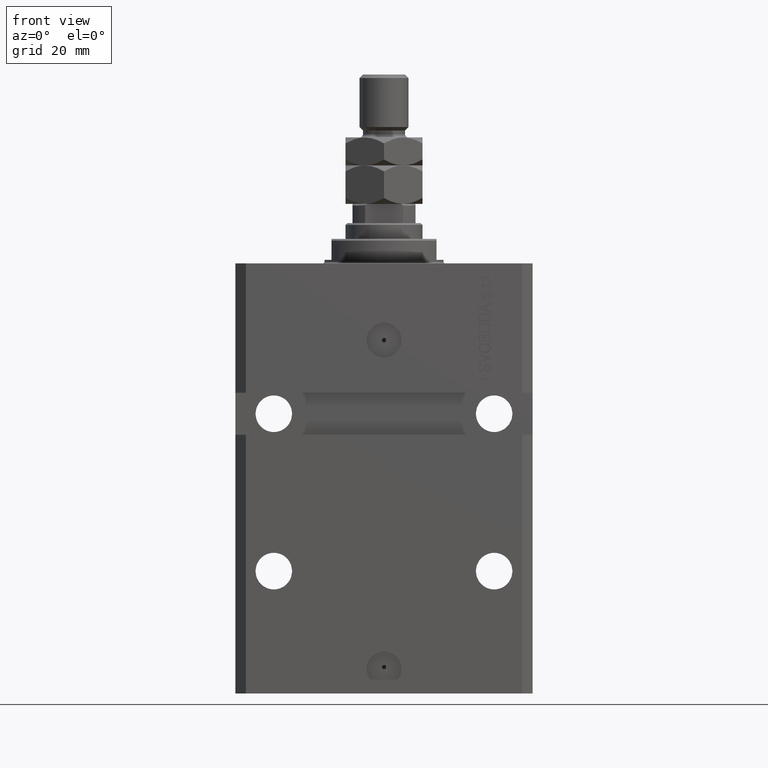
[diagram: clean part render]
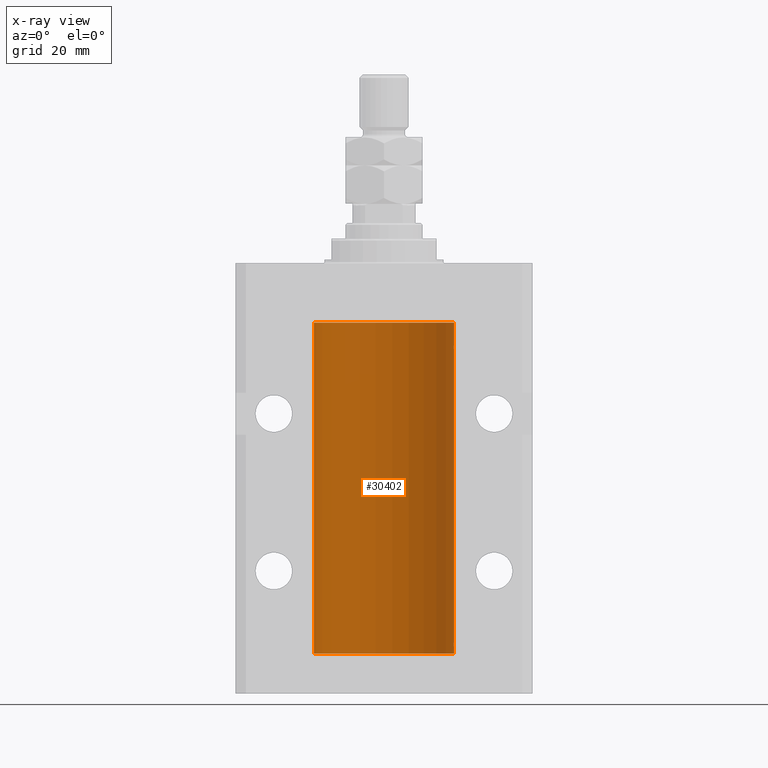
[diagram: x-ray — body ghosted, one internal face saturated and labeled with its STEP entity id]
A machine part, front view, then the same camera in x-ray: the body is ghosted and one INTERNAL B-rep face — a face not visible from any outside direction — is saturated and labeled: STEP entity #30402.
In plain terms, the highlighted cylindrical surface (partial cylindrical patch) has radius 20 mm, axis along (0, 0, 1).
Its self-contained STEP definition (entity closure, byte-faithful):
#1185 = CARTESIAN_POINT ( 'NONE',  ( 19.99999999999999645, 0.08261455565447944904, -24.62499999999999289 ) ) ;
#1657 = DIRECTION ( 'NONE',  ( 1.000000000000000000, 0.000000000000000000, 0.000000000000000000 ) ) ;
#1880 = VERTEX_POINT ( 'NONE', #23929 ) ;
#2197 = B_SPLINE_CURVE_WITH_KNOTS ( 'NONE', 3,
 ( #16787, #1185, #16542, #31839, #47199, #12748, #28085, #24324 ),
 .UNSPECIFIED., .F., .F.,
 ( 4, 2, 2, 4 ),
 ( 3.558729249985022577E-18, 0.0002443247335684094949, 0.0004886494671368154120, 0.0009772989342736271377 ),
 .UNSPECIFIED. ) ;
#2210 = CIRCLE ( 'NONE', #31913, 20.00000000000000000 ) ;
#2554 = CARTESIAN_POINT ( 'NONE',  ( 20.00000000000000000, 2.480610556832390753E-15, -24.62500000000000000 ) ) ;
#3449 = LINE ( 'NONE', #14768, #49106 ) ;
#3940 = CARTESIAN_POINT ( 'NONE',  ( 19.99023198964909298, 0.6250000000081508134, -23.99999999999910472 ) ) ;
#5371 = ORIENTED_EDGE ( 'NONE', *, *, #18889, .T. ) ;
#7219 = VECTOR ( 'NONE', #9198, 1000.000000000000000 ) ;
#9198 = DIRECTION ( 'NONE',  ( -0.000000000000000000, -0.000000000000000000, 1.000000000000000000 ) ) ;
#9741 = CARTESIAN_POINT ( 'NONE',  ( -20.00000000000000000, 2.449293598294706513E-15, -111.5999999999999943 ) ) ;
#9915 = DIRECTION ( 'NONE',  ( 1.000000000000000000, 0.000000000000000000, 0.000000000000000000 ) ) ;
#10673 = CARTESIAN_POINT ( 'NONE',  ( 19.99999999999999645, 0.08261455565447825555, -109.6249999999999574 ) ) ;
#10922 = CARTESIAN_POINT ( 'NONE',  ( 20.00000000000000000, 0.000000000000000000, -111.5999999999999943 ) ) ;
#11709 = VECTOR ( 'NONE', #26607, 1000.000000000000000 ) ;
#11838 = DIRECTION ( 'NONE',  ( 1.000000000000000000, 0.000000000000000000, 0.000000000000000000 ) ) ;
#12441 = VERTEX_POINT ( 'NONE', #14744 ) ;
#12748 = CARTESIAN_POINT ( 'NONE',  ( 19.99256353007439202, 0.5574106582031160828, -24.32639035180114817 ) ) ;
#13921 = CYLINDRICAL_SURFACE ( 'NONE', #35064, 20.00000000000000000 ) ;
#14020 = CARTESIAN_POINT ( 'NONE',  ( 19.99023198964936299, 0.6249999999995806688, -108.8369638477980885 ) ) ;
#14744 = CARTESIAN_POINT ( 'NONE',  ( 20.00000000000010303, 3.555666340528858977E-13, -23.37499999999667111 ) ) ;
#14768 = CARTESIAN_POINT ( 'NONE',  ( 20.00000000000000000, 0.000000000000000000, -111.5999999999999943 ) ) ;
#15623 = CARTESIAN_POINT ( 'NONE',  ( 0.000000000000000000, 0.000000000000000000, -111.5999999999999943 ) ) ;
#16081 = ORIENTED_EDGE ( 'NONE', *, *, #35418, .F. ) ;
#16419 = CARTESIAN_POINT ( 'NONE',  ( 20.00000000000000000, 0.000000000000000000, -17.00000000000000000 ) ) ;
#16542 = CARTESIAN_POINT ( 'NONE',  ( 19.99947351343144675, 0.1636818329565332686, -24.60872855715644292 ) ) ;
#16611 = CARTESIAN_POINT ( 'NONE',  ( 20.00000000000010303, 3.555666352936568165E-13, -108.3749999999966747 ) ) ;
#16787 = CARTESIAN_POINT ( 'NONE',  ( 20.00000000000000000, 2.480610556832390753E-15, -24.62500000000000000 ) ) ;
#17372 = B_SPLINE_CURVE_WITH_KNOTS ( 'NONE', 3,
 ( #40944, #14020, #17823, #29357, #33119, #28596 ),
 .UNSPECIFIED., .F., .F.,
 ( 4, 2, 4 ),
 ( 0.0009772989342736221503, 0.001465726722058849005, 0.001954154509844075859 ),
 .UNSPECIFIED. ) ;
#17823 = CARTESIAN_POINT ( 'NONE',  ( 19.99253733128256627, 0.5586305947779004466, -108.6747603673526044 ) ) ;
#18225 = LINE ( 'NONE', #10922, #19242 ) ;
#18833 = LINE ( 'NONE', #45726, #11709 ) ;
#18889 = EDGE_CURVE ( 'NONE', #27993, #1880, #18225, .T. ) ;
#19242 = VECTOR ( 'NONE', #33276, 1000.000000000000000 ) ;
#19530 = CARTESIAN_POINT ( 'NONE',  ( 19.99023198964935588, 0.6249999999995746736, -23.83696384779806721 ) ) ;
#20959 = EDGE_CURVE ( 'NONE', #42100, #41001, #3449, .T. ) ;
#22690 = DIRECTION ( 'NONE',  ( 0.000000000000000000, 0.000000000000000000, 1.000000000000000000 ) ) ;
#23114 = ORIENTED_EDGE ( 'NONE', *, *, #47659, .T. ) ;
#23318 = CARTESIAN_POINT ( 'NONE',  ( 19.99253733128256272, 0.5586305947778931191, -23.67476036735258305 ) ) ;
#23705 = ORIENTED_EDGE ( 'NONE', *, *, #29337, .T. ) ;
#23726 = VERTEX_POINT ( 'NONE', #16419 ) ;
#23814 = AXIS2_PLACEMENT_3D ( 'NONE', #33320, #32818, #1657 ) ;
#23929 = CARTESIAN_POINT ( 'NONE',  ( 20.00000000000000000, -4.058908006348821872E-15, -109.6250000000000000 ) ) ;
#24324 = CARTESIAN_POINT ( 'NONE',  ( 19.99023198964909298, 0.6250000000081508134, -23.99999999999910472 ) ) ;
#24421 = EDGE_CURVE ( 'NONE', #1880, #28785, #40312, .T. ) ;
#26607 = DIRECTION ( 'NONE',  ( -0.000000000000000000, -0.000000000000000000, 1.000000000000000000 ) ) ;
#26747 = CARTESIAN_POINT ( 'NONE',  ( 19.99023198964934167, 0.6250000000002757794, -109.1631101482932706 ) ) ;
#27993 = VERTEX_POINT ( 'NONE', #41204 ) ;
#28085 = CARTESIAN_POINT ( 'NONE',  ( 19.99023198964933812, 0.6250000000002681189, -24.16311014829328130 ) ) ;
#28176 = EDGE_CURVE ( 'NONE', #42694, #33695, #18833, .T. ) ;
#28290 = B_SPLINE_CURVE_WITH_KNOTS ( 'NONE', 3,
 ( #3940, #19530, #23318, #46424, #42177, #35102 ),
 .UNSPECIFIED., .F., .F.,
 ( 4, 2, 4 ),
 ( 0.0009772989342736271377, 0.001465726722058853775, 0.001954154509844080196 ),
 .UNSPECIFIED. ) ;
#28596 = CARTESIAN_POINT ( 'NONE',  ( 20.00000000000010303, 3.555666352936568165E-13, -108.3749999999966747 ) ) ;
#28785 = VERTEX_POINT ( 'NONE', #49365 ) ;
#29177 = ORIENTED_EDGE ( 'NONE', *, *, #41484, .T. ) ;
#29258 = DIRECTION ( 'NONE',  ( -0.000000000000000000, -0.000000000000000000, 1.000000000000000000 ) ) ;
#29337 = EDGE_CURVE ( 'NONE', #23726, #33695, #45495, .T. ) ;
#29357 = CARTESIAN_POINT ( 'NONE',  ( 19.99769474220011034, 0.3253030616682413001, -108.4414063389763072 ) ) ;
#30402 = ADVANCED_FACE ( 'NONE', ( #41095 ), #13921, .F. ) ;
#31064 = CARTESIAN_POINT ( 'NONE',  ( 19.99023198964909298, 0.6250000000081508134, -23.99999999999910472 ) ) ;
#31839 = CARTESIAN_POINT ( 'NONE',  ( 19.99766100389832957, 0.3150982863324739425, -24.54594438241279164 ) ) ;
#31913 = AXIS2_PLACEMENT_3D ( 'NONE', #15623, #22690, #11838 ) ;
#32818 = DIRECTION ( 'NONE',  ( 0.000000000000000000, 0.000000000000000000, 1.000000000000000000 ) ) ;
#33119 = CARTESIAN_POINT ( 'NONE',  ( 19.99999999999999645, 0.1631318418333158327, -108.3750000000001705 ) ) ;
#33276 = DIRECTION ( 'NONE',  ( -0.000000000000000000, -0.000000000000000000, 1.000000000000000000 ) ) ;
#33320 = CARTESIAN_POINT ( 'NONE',  ( 0.000000000000000000, 0.000000000000000000, -17.00000000000000000 ) ) ;
#33533 = CARTESIAN_POINT ( 'NONE',  ( 19.99256353007439202, 0.5574106582031174151, -109.3263903518011517 ) ) ;
#33695 = VERTEX_POINT ( 'NONE', #34605 ) ;
#33716 = EDGE_CURVE ( 'NONE', #41822, #12441, #28290, .T. ) ;
#33786 = CARTESIAN_POINT ( 'NONE',  ( 19.99023198964909298, 0.6250000000081574747, -108.9999999999991047 ) ) ;
#34032 = CARTESIAN_POINT ( 'NONE',  ( 19.99766100389833312, 0.3150982863324784944, -109.5459443824127987 ) ) ;
#34281 = CARTESIAN_POINT ( 'NONE',  ( 19.99947351343144319, 0.1636818329565372654, -109.6087285571564536 ) ) ;
#34605 = CARTESIAN_POINT ( 'NONE',  ( -20.00000000000000000, 2.449293598294706513E-15, -17.00000000000000000 ) ) ;
#34638 = ORIENTED_EDGE ( 'NONE', *, *, #20959, .T. ) ;
#34817 = EDGE_LOOP ( 'NONE', ( #40004, #16081, #5371, #40619, #23114, #34638, #29177, #46584, #41661, #23705 ) ) ;
#35064 = AXIS2_PLACEMENT_3D ( 'NONE', #43848, #29258, #9915 ) ;
#35102 = CARTESIAN_POINT ( 'NONE',  ( 20.00000000000010303, 3.555666340528858977E-13, -23.37499999999667111 ) ) ;
#35418 = EDGE_CURVE ( 'NONE', #27993, #42694, #2210, .T. ) ;
#38151 = DIRECTION ( 'NONE',  ( -0.000000000000000000, -0.000000000000000000, 1.000000000000000000 ) ) ;
#40004 = ORIENTED_EDGE ( 'NONE', *, *, #28176, .F. ) ;
#40312 = B_SPLINE_CURVE_WITH_KNOTS ( 'NONE', 3,
 ( #45872, #10673, #34281, #34032, #49639, #33533, #26747, #33786 ),
 .UNSPECIFIED., .F., .F.,
 ( 4, 2, 2, 4 ),
 ( 3.944467879762244826E-18, 0.0002443247335684012008, 0.0004886494671367983900, 0.0009772989342736221503 ),
 .UNSPECIFIED. ) ;
#40619 = ORIENTED_EDGE ( 'NONE', *, *, #24421, .T. ) ;
#40944 = CARTESIAN_POINT ( 'NONE',  ( 19.99023198964909298, 0.6250000000081574747, -108.9999999999991047 ) ) ;
#41001 = VERTEX_POINT ( 'NONE', #2554 ) ;
#41095 = FACE_OUTER_BOUND ( 'NONE', #34817, .T. ) ;
#41204 = CARTESIAN_POINT ( 'NONE',  ( 20.00000000000000000, 0.000000000000000000, -111.5999999999999943 ) ) ;
#41484 = EDGE_CURVE ( 'NONE', #41001, #41822, #2197, .T. ) ;
#41661 = ORIENTED_EDGE ( 'NONE', *, *, #48747, .T. ) ;
#41822 = VERTEX_POINT ( 'NONE', #31064 ) ;
#42100 = VERTEX_POINT ( 'NONE', #16611 ) ;
#42177 = CARTESIAN_POINT ( 'NONE',  ( 19.99999999999999645, 0.1631318418333146114, -23.37500000000016698 ) ) ;
#42694 = VERTEX_POINT ( 'NONE', #9741 ) ;
#43161 = CARTESIAN_POINT ( 'NONE',  ( 20.00000000000000000, 0.000000000000000000, -111.5999999999999943 ) ) ;
#43848 = CARTESIAN_POINT ( 'NONE',  ( 0.000000000000000000, 0.000000000000000000, -111.5999999999999943 ) ) ;
#45495 = CIRCLE ( 'NONE', #23814, 20.00000000000000000 ) ;
#45726 = CARTESIAN_POINT ( 'NONE',  ( -20.00000000000000000, 2.449293598294706513E-15, -111.5999999999999943 ) ) ;
#45872 = CARTESIAN_POINT ( 'NONE',  ( 20.00000000000000000, -4.058908006348821872E-15, -109.6250000000000000 ) ) ;
#46424 = CARTESIAN_POINT ( 'NONE',  ( 19.99769474220010679, 0.3253030616682399123, -23.44140633897632142 ) ) ;
#46584 = ORIENTED_EDGE ( 'NONE', *, *, #33716, .T. ) ;
#47199 = CARTESIAN_POINT ( 'NONE',  ( 19.99638788807192924, 0.3844440352705381647, -24.49948058986479893 ) ) ;
#47423 = LINE ( 'NONE', #43161, #7219 ) ;
#47659 = EDGE_CURVE ( 'NONE', #28785, #42100, #17372, .T. ) ;
#48747 = EDGE_CURVE ( 'NONE', #12441, #23726, #47423, .T. ) ;
#49106 = VECTOR ( 'NONE', #38151, 1000.000000000000000 ) ;
#49365 = CARTESIAN_POINT ( 'NONE',  ( 19.99023198964909298, 0.6250000000081574747, -108.9999999999991047 ) ) ;
#49639 = CARTESIAN_POINT ( 'NONE',  ( 19.99638788807192924, 0.3844440352705359998, -109.4994805898647883 ) ) ;